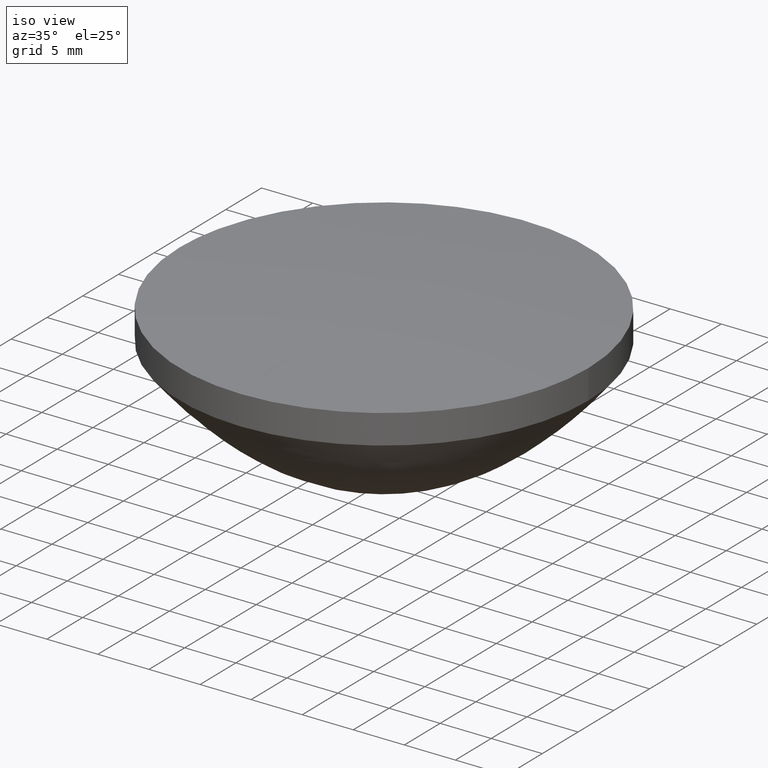
[diagram: clean part render]
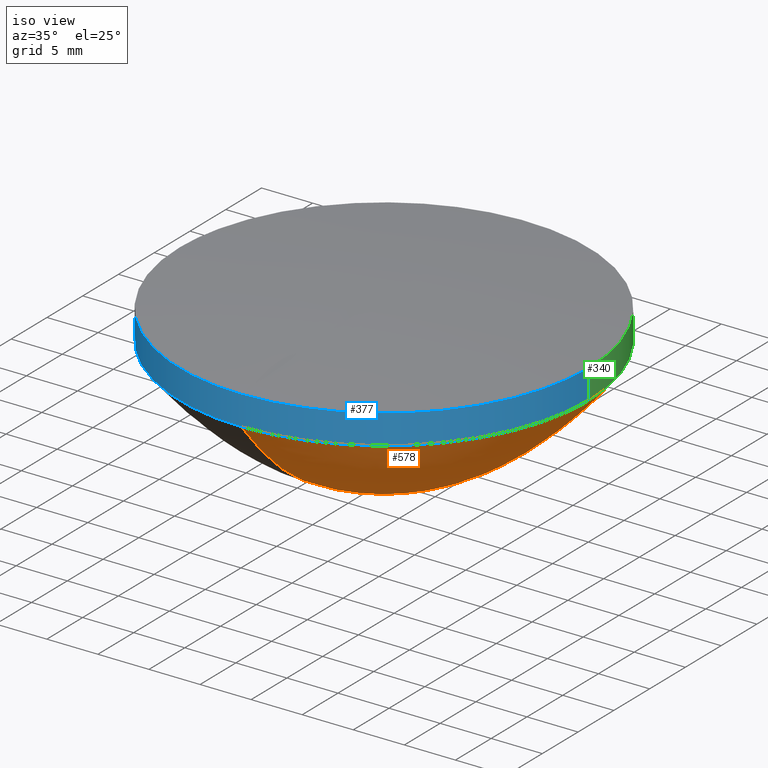
[diagram: same view with three faces highlighted in distinct colors, each labeled with its STEP entity id]
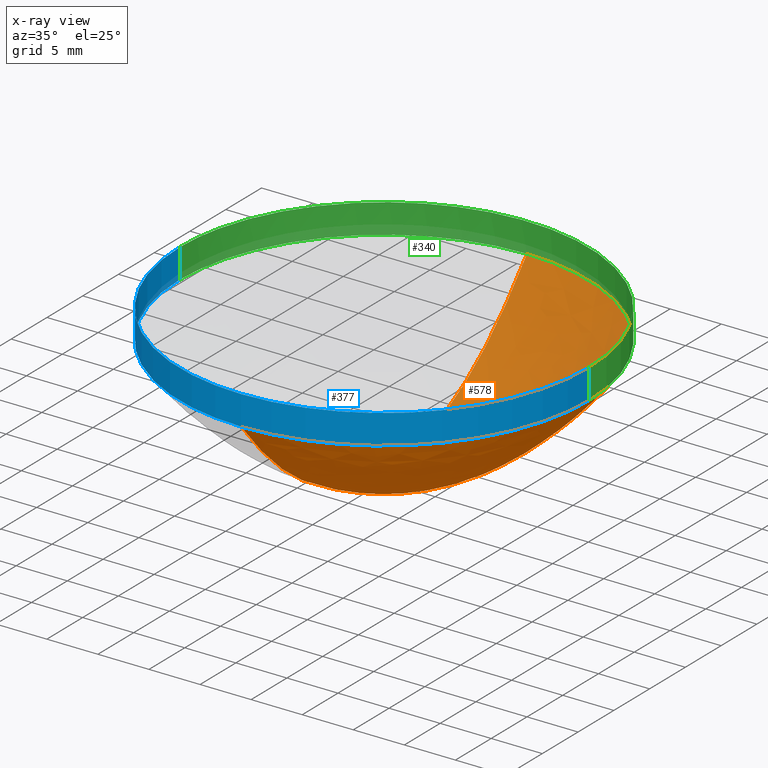
[diagram: x-ray of the same camera — body ghosted, the three highlighted faces saturated]
A machine part, iso view with three faces highlighted in distinct colors.
The next image is the same camera in x-ray (body ghosted, the three faces saturated) — at least one of them is partly hidden behind the body in this view.
Their STEP definitions:

[orange] entity #578 — the highlighted face is a freeform B-spline surface patch.
#5 = CARTESIAN_POINT ( 'NONE',  ( 0.000000000000000000, 9.659041674304420511, 2.534428717358429672 ) ) ;
#7 = CARTESIAN_POINT ( 'NONE',  ( -19.99999999999999645, 19.99999999999999645, 11.62345240056929896 ) ) ;
#9 = CARTESIAN_POINT ( 'NONE',  ( 6.601634143209210492, 6.601634143209196282, 1.166639816840760346 ) ) ;
#12 = CARTESIAN_POINT ( 'NONE',  ( 7.852413137531179643, -1.914616365393309996E-14, 1.659948762402909894 ) ) ;
#15 = CARTESIAN_POINT ( 'NONE',  ( -4.099995018653511458, -4.099995018653468826, 0.4446225274190661048 ) ) ;
#16 = CARTESIAN_POINT ( 'NONE',  ( -2.816779455752589642E-14, -6.601634143209209604, 1.166639816840759902 ) ) ;
#18 = CARTESIAN_POINT ( 'NONE',  ( 5.350825961692422084, 5.350825961692402544, 0.7621936276929105469 ) ) ;
#19 = CARTESIAN_POINT ( 'NONE',  ( 1.577721810442019932E-30, 0.8341952852228489146, 0.01232090582175070052 ) ) ;
#20 = CARTESIAN_POINT ( 'NONE',  ( -14.62628593450470049, -14.62628593450458681, 5.970071916331058048 ) ) ;
#22 = CARTESIAN_POINT ( 'NONE',  ( 1.577721810442019932E-30, 1.738553428737729778, 0.07245383292584370305 ) ) ;
#23 = CARTESIAN_POINT ( 'NONE',  ( -13.49554542342190011, 8.915424147817971358E-15, 5.052175101878280117 ) ) ;
#24 = CARTESIAN_POINT ( 'NONE',  ( 0.000000000000000000, 9.103154552021610613, 2.244514169672520154 ) ) ;
#26 = CARTESIAN_POINT ( 'NONE',  ( 13.49554542342190011, 13.49554542342180241, 5.052175101878271235 ) ) ;
#28 = CARTESIAN_POINT ( 'NONE',  ( 0.2778925748532989903, -1.808696017246919925E-14, -8.029777013077950599E-17 ) ) ;
#29 = CARTESIAN_POINT ( 'NONE',  ( 15.85053648169400553, -15.85053648169408724, 7.093137067620694403 ) ) ;
#32 = CARTESIAN_POINT ( 'NONE',  ( 2.642407831735550161, -1.848572117808719762E-14, 0.1778472089289599711 ) ) ;
#33 = CARTESIAN_POINT ( 'NONE',  ( 0.000000000000000000, 18.24433404062660102, 9.533024363435600890 ) ) ;
#37 = CARTESIAN_POINT ( 'NONE',  ( -9.659041674304456038, -9.659041674304415181, 2.534428717358428784 ) ) ;
#40 = CARTESIAN_POINT ( 'NONE',  ( -9.103154552021605284, 9.103154552021619494, 2.244514169672522819 ) ) ;
#41 = CARTESIAN_POINT ( 'NONE',  ( -2.587550535026699699E-14, -15.85053648169409968, 7.093137067620689962 ) ) ;
#46 = CARTESIAN_POINT ( 'NONE',  ( 10.35384685393950477, 10.35384685393950477, 2.923093322599557009 ) ) ;
#50 = CARTESIAN_POINT ( 'NONE',  ( -7.852413137531215170, -7.852413137531187637, 1.659948762402918776 ) ) ;
#55 = CARTESIAN_POINT ( 'NONE',  ( -2.803588504408989570E-14, -7.852413137531199183, 1.659948762402920108 ) ) ;
#57 = CARTESIAN_POINT ( 'NONE',  ( 1.224646799147349904E-15, 20.00000000000000000, 11.62345240056929896 ) ) ;
#59 = CARTESIAN_POINT ( 'NONE',  ( -2.827417863596979888E-14, -3.405157014967159945, 0.3051841653787840114 ) ) ;
#62 = B_SPLINE_CURVE_WITH_KNOTS ( 'NONE', 3,
 ( #382, #443, #606, #618, #41, #271, #671, #716, #487, #254, #105, #374, #623, #210, #322, #331, #257, #560, #610, #198, #432, #95, #501, #262, #490, #731, #206 ),
 .UNSPECIFIED., .F., .F.,
 ( 4, 1, 1, 1, 1, 1, 1, 1, 1, 1, 1, 1, 1, 1, 1, 1, 1, 1, 1, 1, 1, 1, 1, 1, 4 ),
 ( 0.000000000000000000, 0.1331924723789049969, 0.2087526336087719980, 0.2453160674682340059, 0.3161049778894040041, 0.4168348326363019996, 0.4276516619708919942, 0.4911184364520199686, 0.5117563586973169487, 0.5523118409319459632, 0.5722518825298780198, 0.6115012980729079839, 0.6308328396796499815, 0.6689534171148749930, 0.6877640771325249647, 0.7249287762474140306, 0.7433038251191860235, 0.7796807415030869715, 0.7977030364038720789, 0.8334556356452639259, 0.8512058759747900272, 0.8864937057606280257, 0.9302999929434540016, 0.9651835744165919717, 1.000000000000000000 ),
 .UNSPECIFIED. ) ;
#63 = CARTESIAN_POINT ( 'NONE',  ( -4.655990192516559212, -4.655990192516529902, 0.5752098556579614552 ) ) ;
#66 = CARTESIAN_POINT ( 'NONE',  ( -5.350825961692451394, -5.350825961692408761, 0.7621936276929147658 ) ) ;
#69 = FACE_OUTER_BOUND ( 'NONE', #667, .T. ) ;
#70 = CARTESIAN_POINT ( 'NONE',  ( -6.601634143209210492, 6.601634143209225591, 1.166639816840770338 ) ) ;
#72 = CARTESIAN_POINT ( 'NONE',  ( 1.577721810442019932E-30, 4.099995018653480372, 0.4446225274190659937 ) ) ;
#73 = CARTESIAN_POINT ( 'NONE',  ( -2.812857380618150178E-14, -0.8341952852228570192, 0.01232090582175100063 ) ) ;
#74 = CARTESIAN_POINT ( 'NONE',  ( -16.89259275161060003, 7.966077695997039606E-15, 8.115823315752120237 ) ) ;
#75 = VERTEX_POINT ( 'NONE', #392 ) ;
#76 = CARTESIAN_POINT ( 'NONE',  ( 0.000000000000000000, 0.000000000000000000, 0.000000000000000000 ) ) ;
#77 = CARTESIAN_POINT ( 'NONE',  ( 13.49554542342180241, -13.49554542342190011, 5.052175101878271235 ) ) ;
#79 = CARTESIAN_POINT ( 'NONE',  ( 0.000000000000000000, 10.35384685393950122, 2.923093322599569888 ) ) ;
#80 = CARTESIAN_POINT ( 'NONE',  ( 19.32896964386460681, -19.32896964386460681, 10.79889728285849593 ) ) ;
#83 = CARTESIAN_POINT ( 'NONE',  ( -1.738553428737740214, 1.738553428737748652, 0.07245383292584417489 ) ) ;
#84 = CARTESIAN_POINT ( 'NONE',  ( -2.637460299360479626E-14, -14.62628593450459924, 5.970071916331050943 ) ) ;
#87 =( BOUNDED_CURVE ( )  B_SPLINE_CURVE ( 2, ( #235, #588, #57 ),
 .UNSPECIFIED., .F., .F. ) 
 B_SPLINE_CURVE_WITH_KNOTS ( ( 3, 3 ),
 ( 0.000000000000000000, 1.570796326794899667 ),
 .UNSPECIFIED. ) 
 CURVE ( )  GEOMETRIC_REPRESENTATION_ITEM ( )  RATIONAL_B_SPLINE_CURVE ( ( 1.000000000000000000, 0.7071067811865480168, 1.000000000000000000 ) ) 
 REPRESENTATION_ITEM ( '' )  );
#89 = CARTESIAN_POINT ( 'NONE',  ( 0.000000000000000000, 12.37189568427879927, 4.222043726575119393 ) ) ;
#90 = CARTESIAN_POINT ( 'NONE',  ( 18.24433404062659037, -18.24433404062659037, 9.533024363435588455 ) ) ;
#94 = CARTESIAN_POINT ( 'NONE',  ( 0.000000000000000000, 10.35384685393950122, 2.923093322599569888 ) ) ;
#95 = CARTESIAN_POINT ( 'NONE',  ( -2.827417863596979888E-14, -3.405157014967159945, 0.3051841653787840114 ) ) ;
#97 = CARTESIAN_POINT ( 'NONE',  ( 1.577721810442019932E-30, 1.738553428737729778, 0.07245383292584370305 ) ) ;
#99 = CARTESIAN_POINT ( 'NONE',  ( 10.90969154080810100, -1.938839885884610265E-14, 3.255762493774879918 ) ) ;
#102 = CARTESIAN_POINT ( 'NONE',  ( -1.577721810442019932E-30, 4.655990192516529902, 0.5752098556579590127 ) ) ;
#104 = CARTESIAN_POINT ( 'NONE',  ( 8.408335420827187434, -8.408335420827242501, 1.908429821890168077 ) ) ;
#105 = CARTESIAN_POINT ( 'NONE',  ( -2.761224462193339863E-14, -10.35384685393950122, 2.923093322599559674 ) ) ;
#109 = CARTESIAN_POINT ( 'NONE',  ( -7.852413137531209841, 9.851364651602808330E-15, 1.659948762402920108 ) ) ;
#111 = CARTESIAN_POINT ( 'NONE',  ( 1.577721810442019932E-30, 19.32896964386459970, 10.79889728285850126 ) ) ;
#114 = CARTESIAN_POINT ( 'NONE',  ( 1.577721810442019932E-30, 8.408335420827219409, 1.908429821890170075 ) ) ;
#118 = CARTESIAN_POINT ( 'NONE',  ( 7.852413137531187637, 7.852413137531173426, 1.659948762402910782 ) ) ;
#120 = CARTESIAN_POINT ( 'NONE',  ( 20.00000000000000000, -1.938359619588800056E-14, 11.62345240056929896 ) ) ;
#122 = CARTESIAN_POINT ( 'NONE',  ( 6.601634143209182959, -6.601634143209225591, 1.166639816840760346 ) ) ;
#124 = CARTESIAN_POINT ( 'NONE',  ( 1.577721810442019932E-30, 5.906801585690169887, 0.9311873066207579930 ) ) ;
#128 = CARTESIAN_POINT ( 'NONE',  ( -7.157585622776490020, 9.916512985726769014E-15, 1.374870183044289984 ) ) ;
#129 = CARTESIAN_POINT ( 'NONE',  ( 1.577721810442019932E-30, 5.906801585690169887, 0.9311873066207579930 ) ) ;
#133 = CARTESIAN_POINT ( 'NONE',  ( 1.577721810442019932E-30, 0.8341952852228489146, 0.01232090582175070052 ) ) ;
#134 = CARTESIAN_POINT ( 'NONE',  ( 19.32896964386459970, -1.942535202289679785E-14, 10.79889728285850126 ) ) ;
#136 = CARTESIAN_POINT ( 'NONE',  ( 1.224646799147349904E-15, 20.00000000000000000, 11.62345240056929896 ) ) ;
#137 = CARTESIAN_POINT ( 'NONE',  ( -12.37189568427880282, -12.37189568427880282, 4.222043726575118505 ) ) ;
#138 = VERTEX_POINT ( 'NONE', #719 ) ;
#140 = CARTESIAN_POINT ( 'NONE',  ( -0.8341952852228814441, -0.8341952852228431414, 0.01232090582175119492 ) ) ;
#141 = CARTESIAN_POINT ( 'NONE',  ( -15.85053648169408724, 15.85053648169408724, 7.093137067620694403 ) ) ;
#145 = CARTESIAN_POINT ( 'NONE',  ( 1.577721810442019932E-30, 19.32896964386459970, 10.79889728285850126 ) ) ;
#146 = CARTESIAN_POINT ( 'NONE',  ( 16.89259275161060003, -1.951477309285249975E-14, 8.115823315752111355 ) ) ;
#149 = CARTESIAN_POINT ( 'NONE',  ( 0.000000000000000000, 2.642407831735559931, 0.1778472089289609981 ) ) ;
#150 = CARTESIAN_POINT ( 'NONE',  ( -2.761224462193339863E-14, -10.35384685393950122, 2.923093322599559674 ) ) ;
#154 = CARTESIAN_POINT ( 'NONE',  ( 9.103154552021591073, -9.103154552021633705, 2.244514169672522819 ) ) ;
#157 = B_SPLINE_CURVE_WITH_KNOTS ( 'NONE', 3,
 ( #136, #145, #367, #434, #665, #489, #376, #89, #320, #601, #79, #312, #24, #251, #395, #509, #158, #389, #492, #102, #165, #616, #149, #97, #495, #724, #201 ),
 .UNSPECIFIED., .F., .F.,
 ( 4, 1, 1, 1, 1, 1, 1, 1, 1, 1, 1, 1, 1, 1, 1, 1, 1, 1, 1, 1, 1, 1, 1, 1, 4 ),
 ( 0.000000000000000000, 0.1331924723789049969, 0.2087526336087719980, 0.2453160674682340059, 0.3161049778894040041, 0.4168348326363019996, 0.4276516619708919942, 0.4911184364520199686, 0.5117563586973169487, 0.5523118409319459632, 0.5722518825298780198, 0.6115012980729079839, 0.6308328396796499815, 0.6689534171148749930, 0.6877640771325249647, 0.7249287762474140306, 0.7433038251191860235, 0.7796807415030869715, 0.7977030364038720789, 0.8334556356452639259, 0.8512058759747900272, 0.8864937057606280257, 0.9302999929434540016, 0.9651835744165919717, 1.000000000000000000 ),
 .UNSPECIFIED. ) ;
#158 = CARTESIAN_POINT ( 'NONE',  ( 1.577721810442019932E-30, 6.601634143209209604, 1.166639816840759902 ) ) ;
#160 = CARTESIAN_POINT ( 'NONE',  ( 1.577721810442019932E-30, 8.408335420827219409, 1.908429821890170075 ) ) ;
#165 = CARTESIAN_POINT ( 'NONE',  ( 1.577721810442019932E-30, 4.099995018653480372, 0.4446225274190659937 ) ) ;
#167 = CARTESIAN_POINT ( 'NONE',  ( 9.659041674304384983, -9.659041674304441827, 2.534428717358421679 ) ) ;
#169 = CARTESIAN_POINT ( 'NONE',  ( 0.000000000000000000, 20.00000000000000000, 11.62345240056929896 ) ) ;
#172 = CARTESIAN_POINT ( 'NONE',  ( -2.775176679116149740E-14, -9.659041674304420511, 2.534428717358429672 ) ) ;
#176 = CARTESIAN_POINT ( 'NONE',  ( -2.824834625514989765E-14, -5.350825961692430077, 0.7621936276929139886 ) ) ;
#179 = CARTESIAN_POINT ( 'NONE',  ( -1.577721810442019932E-30, 5.350825961692419419, 0.7621936276929119902 ) ) ;
#182 = CARTESIAN_POINT ( 'NONE',  ( -1.577721810442019932E-30, 4.655990192516529902, 0.5752098556579590127 ) ) ;
#185 = CARTESIAN_POINT ( 'NONE',  ( 7.157585622776450940, -7.157585622776506895, 1.374870183044279992 ) ) ;
#186 = CARTESIAN_POINT ( 'NONE',  ( 5.350825961692402544, -5.350825961692437183, 0.7621936276929117682 ) ) ;
#189 = CARTESIAN_POINT ( 'NONE',  ( 2.642407831735542167, -2.642407831735591461, 0.1778472089289608593 ) ) ;
#190 = ORIENTED_EDGE ( 'NONE', *, *, #651, .F. ) ;
#191 = CARTESIAN_POINT ( 'NONE',  ( -2.642407831735599011, -2.642407831735563928, 0.1778472089289619973 ) ) ;
#192 = CARTESIAN_POINT ( 'NONE',  ( -13.49554542342190011, 13.49554542342190011, 5.052175101878279229 ) ) ;
#193 = CARTESIAN_POINT ( 'NONE',  ( 0.000000000000000000, 0.000000000000000000, 0.000000000000000000 ) ) ;
#194 = CARTESIAN_POINT ( 'NONE',  ( 0.000000000000000000, 12.37189568427879927, 4.222043726575119393 ) ) ;
#197 = CARTESIAN_POINT ( 'NONE',  ( 0.000000000000000000, 0.000000000000000000, 0.000000000000000000 ) ) ;
#198 = CARTESIAN_POINT ( 'NONE',  ( -2.827131229325329812E-14, -4.655990192516539672, 0.5752098556579600119 ) ) ;
#199 = CARTESIAN_POINT ( 'NONE',  ( 0.000000000000000000, 0.000000000000000000, 0.000000000000000000 ) ) ;
#201 = CARTESIAN_POINT ( 'NONE',  ( 0.000000000000000000, 0.000000000000000000, 0.000000000000000000 ) ) ;
#202 = CARTESIAN_POINT ( 'NONE',  ( 16.89259275161062135, 16.89259275161062135, 8.115823315752107803 ) ) ;
#205 = CARTESIAN_POINT ( 'NONE',  ( -9.659041674304429392, 9.631636102693410516E-15, 2.534428717358429672 ) ) ;
#206 = CARTESIAN_POINT ( 'NONE',  ( 0.000000000000000000, 0.000000000000000000, 0.000000000000000000 ) ) ;
#209 = CARTESIAN_POINT ( 'NONE',  ( -11.74867147864680028, 9.285022156214069516E-15, 3.790659671627030214 ) ) ;
#210 = CARTESIAN_POINT ( 'NONE',  ( -2.796036741346199188E-14, -8.408335420827230067, 1.908429821890170075 ) ) ;
#215 = CARTESIAN_POINT ( 'NONE',  ( 10.90969154080810277, 10.90969154080810277, 3.255762493774888355 ) ) ;
#218 = CARTESIAN_POINT ( 'NONE',  ( -2.376557567109769907E-14, -20.00000000000000000, 11.62345240056929896 ) ) ;
#222 = CARTESIAN_POINT ( 'NONE',  ( 12.37189568427879927, -1.946361498308769846E-14, 4.222043726575109623 ) ) ;
#227 = CARTESIAN_POINT ( 'NONE',  ( -8.408335420827256712, -8.408335420827214080, 1.908429821890168077 ) ) ;
#230 = CARTESIAN_POINT ( 'NONE',  ( -19.99999999999999645, -19.99999999999999645, 11.62345240056929896 ) ) ;
#233 = CARTESIAN_POINT ( 'NONE',  ( -6.601634143209220262, 9.961134044290139837E-15, 1.166639816840769894 ) ) ;
#235 = CARTESIAN_POINT ( 'NONE',  ( 20.00000000000000000, 0.000000000000000000, 11.62345240056929896 ) ) ;
#237 = CARTESIAN_POINT ( 'NONE',  ( 4.655990192516537896, 4.655990192516523685, 0.5752098556579580135 ) ) ;
#240 = CARTESIAN_POINT ( 'NONE',  ( 4.099995018653453727, -4.099995018653503465, 0.4446225274190639398 ) ) ;
#241 = CARTESIAN_POINT ( 'NONE',  ( 1.577721810442019932E-30, 6.601634143209209604, 1.166639816840759902 ) ) ;
#242 = VERTEX_POINT ( 'NONE', #726 ) ;
#243 = CARTESIAN_POINT ( 'NONE',  ( 4.099995018653470602, -1.870008459813129808E-14, 0.4446225274190639953 ) ) ;
#245 =( BOUNDED_CURVE ( )  B_SPLINE_CURVE ( 2, ( #445, #384, #612 ),
 .UNSPECIFIED., .F., .T. ) 
 B_SPLINE_CURVE_WITH_KNOTS ( ( 3, 3 ),
 ( 4.712388980384677239, 6.283185307179590673 ),
 .UNSPECIFIED. ) 
 CURVE ( )  GEOMETRIC_REPRESENTATION_ITEM ( )  RATIONAL_B_SPLINE_CURVE ( ( 1.000000000000002442, 0.7071067811865457964, 1.000000000000000000 ) ) 
 REPRESENTATION_ITEM ( '' )  );
#246 = CARTESIAN_POINT ( 'NONE',  ( 1.577721810442019932E-30, 3.405157014967159945, 0.3051841653787820130 ) ) ;
#247 = CARTESIAN_POINT ( 'NONE',  ( 0.000000000000000000, 14.62628593450459924, 5.970071916331059825 ) ) ;
#249 = CARTESIAN_POINT ( 'NONE',  ( 0.000000000000000000, 0.000000000000000000, 0.000000000000000000 ) ) ;
#250 = CARTESIAN_POINT ( 'NONE',  ( 13.49554542342179886, -1.950388798514850016E-14, 5.052175101878270347 ) ) ;
#251 = CARTESIAN_POINT ( 'NONE',  ( 1.577721810442019932E-30, 8.408335420827219409, 1.908429821890170075 ) ) ;
#252 = CARTESIAN_POINT ( 'NONE',  ( 0.000000000000000000, 16.89259275161060003, 8.115823315752120237 ) ) ;
#253 = EDGE_CURVE ( 'NONE', #242, #75, #62, .T. ) ;
#254 = CARTESIAN_POINT ( 'NONE',  ( -2.748806474816759716E-14, -10.90969154080810100, 3.255762493774879918 ) ) ;
#256 = CARTESIAN_POINT ( 'NONE',  ( 0.000000000000000000, 0.000000000000000000, 0.000000000000000000 ) ) ;
#257 = CARTESIAN_POINT ( 'NONE',  ( -2.816779455752589642E-14, -6.601634143209209604, 1.166639816840759902 ) ) ;
#261 = CARTESIAN_POINT ( 'NONE',  ( -18.24433404062660102, 7.513471372652820048E-15, 9.533024363435600890 ) ) ;
#262 = CARTESIAN_POINT ( 'NONE',  ( -2.820457461063799348E-14, -1.738553428737739770, 0.07245383292584289814 ) ) ;
#264 = CARTESIAN_POINT ( 'NONE',  ( -11.74867147864679850, -11.74867147864669903, 3.790659671627027993 ) ) ;
#270 = CARTESIAN_POINT ( 'NONE',  ( 12.37189568427870512, -12.37189568427880282, 4.222043726575111400 ) ) ;
#271 = CARTESIAN_POINT ( 'NONE',  ( -2.637460299360479626E-14, -14.62628593450459924, 5.970071916331050943 ) ) ;
#275 = CARTESIAN_POINT ( 'NONE',  ( 8.408335420827214080, 8.408335420827201645, 1.908429821890168077 ) ) ;
#280 = CARTESIAN_POINT ( 'NONE',  ( -9.103154552021630153, 9.707118967848380341E-15, 2.244514169672520154 ) ) ;
#286 = CARTESIAN_POINT ( 'NONE',  ( 3.155443620884050024E-30, 7.852413137531188525, 1.659948762402920108 ) ) ;
#291 = CARTESIAN_POINT ( 'NONE',  ( 3.405157014967127971, -3.405157014967177265, 0.3051841653787830677 ) ) ;
#295 = CARTESIAN_POINT ( 'NONE',  ( 4.655990192516520132, -1.877608419688349577E-14, 0.5752098556579579025 ) ) ;
#300 = CARTESIAN_POINT ( 'NONE',  ( -4.655990192516537896, 4.655990192516552106, 0.5752098556579614552 ) ) ;
#303 = CARTESIAN_POINT ( 'NONE',  ( 4.099995018653482148, 4.099995018653460832, 0.4446225274190653831 ) ) ;
#304 = CARTESIAN_POINT ( 'NONE',  ( 7.852413137531158327, -7.852413137531215170, 1.659948762402910782 ) ) ;
#306 = CARTESIAN_POINT ( 'NONE',  ( 2.642407831735570145, 2.642407831735549717, 0.1778472089289599989 ) ) ;
#309 = CARTESIAN_POINT ( 'NONE',  ( 0.000000000000000000, 15.85053648169409968, 7.093137067620689962 ) ) ;
#310 = CARTESIAN_POINT ( 'NONE',  ( -2.642407831735570145, 2.642407831735577695, 0.1778472089289619973 ) ) ;
#311 = CARTESIAN_POINT ( 'NONE',  ( 15.85053648169409968, -1.952802548256929980E-14, 7.093137067620689962 ) ) ;
#312 = CARTESIAN_POINT ( 'NONE',  ( 0.000000000000000000, 9.659041674304420511, 2.534428717358429672 ) ) ;
#313 = CARTESIAN_POINT ( 'NONE',  ( -15.85053648169408724, -15.85053648169408724, 7.093137067620694403 ) ) ;
#316 = CARTESIAN_POINT ( 'NONE',  ( -1.738553428737768414, -1.738553428737729112, 0.07245383292584345325 ) ) ;
#317 = CARTESIAN_POINT ( 'NONE',  ( -13.49554542342190011, -13.49554542342180241, 5.052175101878279229 ) ) ;
#320 = CARTESIAN_POINT ( 'NONE',  ( 0.000000000000000000, 11.74867147864680028, 3.790659671627020000 ) ) ;
#321 = CARTESIAN_POINT ( 'NONE',  ( 19.32896964386460681, 19.32896964386460681, 10.79889728285849593 ) ) ;
#322 = CARTESIAN_POINT ( 'NONE',  ( -2.803588504408989570E-14, -7.852413137531199183, 1.659948762402920108 ) ) ;
#326 = CARTESIAN_POINT ( 'NONE',  ( 0.000000000000000000, 10.90969154080810100, 3.255762493774890132 ) ) ;
#330 = CARTESIAN_POINT ( 'NONE',  ( 9.659041674304427616, 9.659041674304399194, 2.534428717358428784 ) ) ;
#331 = CARTESIAN_POINT ( 'NONE',  ( -2.811554158391679440E-14, -7.157585622776480250, 1.374870183044279770 ) ) ;
#336 = CARTESIAN_POINT ( 'NONE',  ( 12.37189568427880282, 12.37189568427870512, 4.222043726575111400 ) ) ;
#341 = CARTESIAN_POINT ( 'NONE',  ( -10.35384685393950122, 9.527354666591729256E-15, 2.923093322599569888 ) ) ;
#346 = CARTESIAN_POINT ( 'NONE',  ( 0.000000000000000000, 9.659041674304420511, 2.534428717358429672 ) ) ;
#349 = CARTESIAN_POINT ( 'NONE',  ( -3.405157014967170159, 1.009083871542779999E-14, 0.3051841653787840114 ) ) ;
#351 = CARTESIAN_POINT ( 'NONE',  ( 19.99999999999999645, -19.99999999999999645, 11.62345240056929896 ) ) ;
#352 = CARTESIAN_POINT ( 'NONE',  ( 5.906801585690160117, -1.893461107645479681E-14, 0.9311873066207569938 ) ) ;
#356 = CARTESIAN_POINT ( 'NONE',  ( 1.577721810442019932E-30, 6.601634143209209604, 1.166639816840759902 ) ) ;
#360 = CARTESIAN_POINT ( 'NONE',  ( 1.577721810442019932E-30, 7.157585622776470480, 1.374870183044279770 ) ) ;
#361 = CARTESIAN_POINT ( 'NONE',  ( 7.157585622776470480, -1.907558003044569835E-14, 1.374870183044279770 ) ) ;
#363 = CARTESIAN_POINT ( 'NONE',  ( 0.000000000000000000, 2.642407831735559931, 0.1778472089289609981 ) ) ;
#364 = CARTESIAN_POINT ( 'NONE',  ( -2.475863765529090030E-14, -18.24433404062660102, 9.533024363435600890 ) ) ;
#365 = CARTESIAN_POINT ( 'NONE',  ( 0.8341952852228249338, -0.8341952852228715631, 0.01232090582175070226 ) ) ;
#366 = CARTESIAN_POINT ( 'NONE',  ( 18.24433404062659037, 18.24433404062659037, 9.533024363435600890 ) ) ;
#367 = CARTESIAN_POINT ( 'NONE',  ( 0.000000000000000000, 18.24433404062660102, 9.533024363435600890 ) ) ;
#368 = CARTESIAN_POINT ( 'NONE',  ( -2.587550535026699699E-14, -15.85053648169409968, 7.093137067620689962 ) ) ;
#372 = CARTESIAN_POINT ( 'NONE',  ( -0.8341952852228531334, 0.8341952852228631254, 0.01232090582175089828 ) ) ;
#373 = CARTESIAN_POINT ( 'NONE',  ( -14.62628593450458681, 14.62628593450458681, 5.970071916331058048 ) ) ;
#374 = CARTESIAN_POINT ( 'NONE',  ( -2.775176679116149740E-14, -9.659041674304420511, 2.534428717358429672 ) ) ;
#376 = CARTESIAN_POINT ( 'NONE',  ( -1.577721810442019932E-30, 13.49554542342190011, 5.052175101878280117 ) ) ;
#381 = CARTESIAN_POINT ( 'NONE',  ( -2.710871424418359947E-14, -12.37189568427879927, 4.222043726575119393 ) ) ;
#382 = CARTESIAN_POINT ( 'NONE',  ( -2.376557567109769907E-14, -20.00000000000000000, 11.62345240056929896 ) ) ;
#384 = CARTESIAN_POINT ( 'NONE',  ( 19.99999999999999645, -20.00000000000022027, 11.62345240056929718 ) ) ;
#385 = CARTESIAN_POINT ( 'NONE',  ( 9.103154552021605284, 9.103154552021605284, 2.244514169672522819 ) ) ;
#389 = CARTESIAN_POINT ( 'NONE',  ( 1.577721810442019932E-30, 5.906801585690169887, 0.9311873066207579930 ) ) ;
#391 = CARTESIAN_POINT ( 'NONE',  ( -8.408335420827238949, 9.791536284814760103E-15, 1.908429821890170075 ) ) ;
#392 = CARTESIAN_POINT ( 'NONE',  ( 0.000000000000000000, 0.000000000000000000, 0.000000000000000000 ) ) ;
#395 = CARTESIAN_POINT ( 'NONE',  ( 3.155443620884050024E-30, 7.852413137531188525, 1.659948762402920108 ) ) ;
#397 = CARTESIAN_POINT ( 'NONE',  ( 0.000000000000000000, 9.103154552021610613, 2.244514169672520154 ) ) ;
#400 = CARTESIAN_POINT ( 'NONE',  ( -19.32896964386460681, 19.32896964386460681, 10.79889728285849593 ) ) ;
#403 = CARTESIAN_POINT ( 'NONE',  ( 11.74867147864669903, -11.74867147864679850, 3.790659671627021332 ) ) ;
#407 = CARTESIAN_POINT ( 'NONE',  ( -2.827868960711719743E-14, -4.099995018653480372, 0.4446225274190649945 ) ) ;
#411 = CARTESIAN_POINT ( 'NONE',  ( 5.906801585690172551, 5.906801585690151235, 0.9311873066207574379 ) ) ;
#414 = CARTESIAN_POINT ( 'NONE',  ( -4.099995018653491030, 1.008070958659719933E-14, 0.4446225274190669929 ) ) ;
#418 = CARTESIAN_POINT ( 'NONE',  ( -2.811554158391679440E-14, -7.157585622776480250, 1.374870183044279770 ) ) ;
#420 = CARTESIAN_POINT ( 'NONE',  ( -3.405157014967163498, 3.405157014967170603, 0.3051841653787830677 ) ) ;
#422 = CARTESIAN_POINT ( 'NONE',  ( -2.825435747977460106E-14, -2.642407831735570145, 0.1778472089289609981 ) ) ;
#424 = CARTESIAN_POINT ( 'NONE',  ( -1.738553428737749762, 1.007670730865139899E-14, 0.07245383292584381407 ) ) ;
#425 = CARTESIAN_POINT ( 'NONE',  ( 16.89259275161062135, -16.89259275161062135, 8.115823315752107803 ) ) ;
#426 = CARTESIAN_POINT ( 'NONE',  ( 0.000000000000000000, 0.2778925748533090379, 0.000000000000000000 ) ) ;
#428 = CARTESIAN_POINT ( 'NONE',  ( 14.62628593450458681, -14.62628593450470049, 5.970071916331050943 ) ) ;
#429 = ORIENTED_EDGE ( 'NONE', *, *, #625, .F. ) ;
#431 = CARTESIAN_POINT ( 'NONE',  ( -16.89259275161062135, 16.89259275161062135, 8.115823315752120237 ) ) ;
#432 = CARTESIAN_POINT ( 'NONE',  ( -2.827868960711719743E-14, -4.099995018653480372, 0.4446225274190649945 ) ) ;
#434 = CARTESIAN_POINT ( 'NONE',  ( 0.000000000000000000, 16.89259275161060003, 8.115823315752120237 ) ) ;
#435 = CARTESIAN_POINT ( 'NONE',  ( 0.000000000000000000, 18.24433404062660102, 9.533024363435600890 ) ) ;
#442 = CARTESIAN_POINT ( 'NONE',  ( -10.90969154080810100, 9.435717771835079619E-15, 3.255762493774890132 ) ) ;
#443 = CARTESIAN_POINT ( 'NONE',  ( -2.415991277295050037E-14, -19.32896964386459970, 10.79889728285850126 ) ) ;
#445 = CARTESIAN_POINT ( 'NONE',  ( -2.376557567109769907E-14, -20.00000000000000000, 11.62345240056929896 ) ) ;
#447 = CARTESIAN_POINT ( 'NONE',  ( 0.000000000000000000, 9.103154552021610613, 2.244514169672520154 ) ) ;
#452 = CARTESIAN_POINT ( 'NONE',  ( 10.35384685393950477, -10.35384685393960247, 2.923093322599557009 ) ) ;
#456 = CARTESIAN_POINT ( 'NONE',  ( 0.000000000000000000, 11.74867147864680028, 3.790659671627020000 ) ) ;
#463 = CARTESIAN_POINT ( 'NONE',  ( -8.408335420827214080, 8.408335420827228290, 1.908429821890168077 ) ) ;
#467 = CARTESIAN_POINT ( 'NONE',  ( -1.577721810442019932E-30, 5.350825961692419419, 0.7621936276929119902 ) ) ;
#469 = CARTESIAN_POINT ( 'NONE',  ( 0.000000000000000000, 20.00000000000000000, 11.62345240056929896 ) ) ;
#473 = CARTESIAN_POINT ( 'NONE',  ( 5.906801585690143241, -5.906801585690193868, 0.9311873066207574379 ) ) ;
#477 = CARTESIAN_POINT ( 'NONE',  ( -7.157585622776478473, 7.157585622776493572, 1.374870183044289984 ) ) ;
#478 = CARTESIAN_POINT ( 'NONE',  ( 1.577721810442019932E-30, 4.099995018653480372, 0.4446225274190659937 ) ) ;
#480 = CARTESIAN_POINT ( 'NONE',  ( 1.577721810442019932E-30, 1.738553428737729778, 0.07245383292584370305 ) ) ;
#481 = CARTESIAN_POINT ( 'NONE',  ( -0.2778925748533129236, 0.2778925748533228601, 8.029777013077946901E-17 ) ) ;
#483 = CARTESIAN_POINT ( 'NONE',  ( -2.806756668730879633E-14, -0.2778925748533169759, 9.833640716932900425E-33 ) ) ;
#484 = CARTESIAN_POINT ( 'NONE',  ( -15.85053648169409968, 8.288610744405170739E-15, 7.093137067620699732 ) ) ;
#485 = CARTESIAN_POINT ( 'NONE',  ( 0.8341952852228389226, -1.818668548153289846E-14, 0.01232090582175059991 ) ) ;
#487 = CARTESIAN_POINT ( 'NONE',  ( -2.728169034295089841E-14, -11.74867147864680028, 3.790659671627020000 ) ) ;
#489 = CARTESIAN_POINT ( 'NONE',  ( 0.000000000000000000, 14.62628593450459924, 5.970071916331059825 ) ) ;
#490 = CARTESIAN_POINT ( 'NONE',  ( -2.812857380618150178E-14, -0.8341952852228570192, 0.01232090582175100063 ) ) ;
#492 = CARTESIAN_POINT ( 'NONE',  ( -1.577721810442019932E-30, 5.350825961692419419, 0.7621936276929119902 ) ) ;
#495 = CARTESIAN_POINT ( 'NONE',  ( 1.577721810442019932E-30, 0.8341952852228489146, 0.01232090582175070052 ) ) ;
#496 = CARTESIAN_POINT ( 'NONE',  ( 0.000000000000000000, 10.90969154080810100, 3.255762493774890132 ) ) ;
#500 = CARTESIAN_POINT ( 'NONE',  ( -2.785123335250909808E-14, -9.103154552021621271, 2.244514169672520154 ) ) ;
#501 = CARTESIAN_POINT ( 'NONE',  ( -2.825435747977460106E-14, -2.642407831735570145, 0.1778472089289609981 ) ) ;
#505 = CARTESIAN_POINT ( 'NONE',  ( -7.852413137531187637, 7.852413137531200960, 1.659948762402918776 ) ) ;
#509 = CARTESIAN_POINT ( 'NONE',  ( 1.577721810442019932E-30, 7.157585622776470480, 1.374870183044279770 ) ) ;
#511 = CARTESIAN_POINT ( 'NONE',  ( 10.90969154080810277, -10.90969154080810277, 3.255762493774881694 ) ) ;
#517 = CARTESIAN_POINT ( 'NONE',  ( -10.35384685393950477, 10.35384685393950477, 2.923093322599571664 ) ) ;
#520 = CARTESIAN_POINT ( 'NONE',  ( -1.577721810442019932E-30, 4.655990192516529902, 0.5752098556579590127 ) ) ;
#524 = CARTESIAN_POINT ( 'NONE',  ( 6.601634143209199834, -1.901512752549809610E-14, 1.166639816840759902 ) ) ;
#527 = CARTESIAN_POINT ( 'NONE',  ( 5.350825961692409649, -1.886630151301279650E-14, 0.7621936276929109910 ) ) ;
#529 = CARTESIAN_POINT ( 'NONE',  ( -20.00000000000000000, 6.831273073504388855E-15, 11.62345240056929896 ) ) ;
#531 = CARTESIAN_POINT ( 'NONE',  ( -6.601634143209238914, -6.601634143209196282, 1.166639816840770338 ) ) ;
#532 = CARTESIAN_POINT ( 'NONE',  ( -4.099995018653482148, 4.099995018653490142, 0.4446225274190667709 ) ) ;
#534 = CARTESIAN_POINT ( 'NONE',  ( 0.8341952852228544657, 0.8341952852228347037, 0.01232090582175040562 ) ) ;
#536 = CARTESIAN_POINT ( 'NONE',  ( 0.000000000000000000, 15.85053648169409968, 7.093137067620689962 ) ) ;
#537 = CARTESIAN_POINT ( 'NONE',  ( -2.820457461063799348E-14, -1.738553428737739770, 0.07245383292584289814 ) ) ;
#538 = CARTESIAN_POINT ( 'NONE',  ( 14.62628593450458681, 14.62628593450458681, 5.970071916331050943 ) ) ;
#539 = CARTESIAN_POINT ( 'NONE',  ( 0.2778925748532846685, -0.2778925748533313533, -8.029777013077946901E-17 ) ) ;
#540 = EDGE_CURVE ( 'NONE', #654, #138, #87, .T. ) ;
#541 = CARTESIAN_POINT ( 'NONE',  ( 14.62628593450459924, -1.952789862971189962E-14, 5.970071916331050943 ) ) ;
#543 = CARTESIAN_POINT ( 'NONE',  ( -0.2778925748533412898, -0.2778925748533030982, 8.029777013077946901E-17 ) ) ;
#545 = CARTESIAN_POINT ( 'NONE',  ( -1.577721810442019932E-30, 13.49554542342190011, 5.052175101878280117 ) ) ;
#548 = CARTESIAN_POINT ( 'NONE',  ( 0.000000000000000000, 2.642407831735559931, 0.1778472089289609981 ) ) ;
#549 = CARTESIAN_POINT ( 'NONE',  ( 1.577721810442019932E-30, 19.32896964386459970, 10.79889728285850126 ) ) ;
#551 =( BOUNDED_SURFACE ( )  B_SPLINE_SURFACE ( 3, 2, ( 
 ( #469, #7, #529, #230, #218, #351, #120, #687, #169 ),
 ( #111, #400, #630, #573, #594, #80, #134, #321, #549 ),
 ( #33, #721, #261, #718, #364, #90, #715, #366, #435 ),
 ( #252, #431, #74, #662, #666, #425, #146, #202, #670 ),
 ( #536, #141, #484, #313, #368, #29, #311, #710, #309 ),
 ( #656, #373, #605, #20, #84, #428, #541, #538, #247 ),
 ( #545, #192, #23, #317, #598, #77, #250, #26, #713 ),
 ( #194, #602, #659, #137, #381, #270, #222, #336, #613 ),
 ( #628, #617, #209, #264, #690, #403, #622, #735, #456 ),
 ( #326, #559, #442, #684, #565, #511, #99, #215, #496 ),
 ( #679, #517, #341, #740, #150, #452, #571, #46, #94 ),
 ( #5, #554, #205, #37, #172, #167, #725, #330, #346 ),
 ( #397, #40, #280, #674, #500, #154, #730, #385, #447 ),
 ( #160, #463, #391, #227, #576, #104, #633, #275, #114 ),
 ( #286, #505, #109, #50, #55, #304, #12, #118, #698 ),
 ( #360, #477, #128, #652, #418, #185, #361, #644, #590 ),
 ( #356, #70, #233, #531, #16, #122, #524, #9, #241 ),
 ( #124, #591, #704, #701, #641, #473, #352, #411, #129 ),
 ( #179, #648, #586, #66, #176, #186, #527, #18, #467 ),
 ( #520, #300, #583, #63, #694, #637, #295, #237, #182 ),
 ( #72, #532, #414, #15, #407, #240, #243, #303, #478 ),
 ( #706, #420, #349, #580, #59, #291, #655, #604, #246 ),
 ( #363, #310, #709, #191, #422, #189, #32, #306, #548 ),
 ( #22, #83, #424, #316, #537, #608, #593, #714, #480 ),
 ( #133, #372, #661, #140, #73, #365, #485, #534, #19 ),
 ( #426, #481, #717, #543, #483, #539, #28, #707, #597 ),
 ( #658, #653, #712, #197, #76, #249, #193, #256, #199 ) ),
 .UNSPECIFIED., .F., .T., .T. ) 
 B_SPLINE_SURFACE_WITH_KNOTS ( ( 4, 1, 1, 1, 1, 1, 1, 1, 1, 1, 1, 1, 1, 1, 1, 1, 1, 1, 1, 1, 1, 1, 1, 1, 4 ),
 ( 3, 2, 2, 2, 3 ),
 ( 0.000000000000000000, 0.1331924723789049969, 0.2087526336087719980, 0.2453160674682340059, 0.3161049778894040041, 0.4168348326363019996, 0.4276516619708919942, 0.4911184364520199686, 0.5117563586973169487, 0.5523118409319459632, 0.5722518825298780198, 0.6115012980729079839, 0.6308328396796499815, 0.6689534171148749930, 0.6877640771325249647, 0.7249287762474140306, 0.7433038251191860235, 0.7796807415030869715, 0.7977030364038720789, 0.8334556356452639259, 0.8512058759747900272, 0.8864937057606280257, 0.9302999929434540016, 0.9651835744165919717, 1.000000000000000000 ),
 ( 0.000000000000000000, 90.00000000000000000, 180.0000000000000000, 270.0000000000000000, 360.0000000000000000 ),
 .UNSPECIFIED. ) 
 GEOMETRIC_REPRESENTATION_ITEM ( )  RATIONAL_B_SPLINE_SURFACE ( (
 ( 1.000000000000000000, 0.7071067811865480168, 1.000000000000000000, 0.7071067811865480168, 1.000000000000000000, 0.7071067811865480168, 1.000000000000000000, 0.7071067811865480168, 1.000000000000000000),
 ( 1.000000000000000000, 0.7071067811865480168, 1.000000000000000000, 0.7071067811865480168, 1.000000000000000000, 0.7071067811865480168, 1.000000000000000000, 0.7071067811865480168, 1.000000000000000000),
 ( 1.000000000000000000, 0.7071067811865480168, 1.000000000000000000, 0.7071067811865480168, 1.000000000000000000, 0.7071067811865480168, 1.000000000000000000, 0.7071067811865480168, 1.000000000000000000),
 ( 1.000000000000000000, 0.7071067811865480168, 1.000000000000000000, 0.7071067811865480168, 1.000000000000000000, 0.7071067811865480168, 1.000000000000000000, 0.7071067811865480168, 1.000000000000000000),
 ( 1.000000000000000000, 0.7071067811865480168, 1.000000000000000000, 0.7071067811865480168, 1.000000000000000000, 0.7071067811865480168, 1.000000000000000000, 0.7071067811865480168, 1.000000000000000000),
 ( 1.000000000000000000, 0.7071067811865480168, 1.000000000000000000, 0.7071067811865480168, 1.000000000000000000, 0.7071067811865480168, 1.000000000000000000, 0.7071067811865480168, 1.000000000000000000),
 ( 1.000000000000000000, 0.7071067811865480168, 1.000000000000000000, 0.7071067811865480168, 1.000000000000000000, 0.7071067811865480168, 1.000000000000000000, 0.7071067811865480168, 1.000000000000000000),
 ( 1.000000000000000000, 0.7071067811865480168, 1.000000000000000000, 0.7071067811865480168, 1.000000000000000000, 0.7071067811865480168, 1.000000000000000000, 0.7071067811865480168, 1.000000000000000000),
 ( 1.000000000000000000, 0.7071067811865480168, 1.000000000000000000, 0.7071067811865480168, 1.000000000000000000, 0.7071067811865480168, 1.000000000000000000, 0.7071067811865480168, 1.000000000000000000),
 ( 1.000000000000000000, 0.7071067811865480168, 1.000000000000000000, 0.7071067811865480168, 1.000000000000000000, 0.7071067811865480168, 1.000000000000000000, 0.7071067811865480168, 1.000000000000000000),
 ( 1.000000000000000000, 0.7071067811865480168, 1.000000000000000000, 0.7071067811865480168, 1.000000000000000000, 0.7071067811865480168, 1.000000000000000000, 0.7071067811865480168, 1.000000000000000000),
 ( 1.000000000000000000, 0.7071067811865480168, 1.000000000000000000, 0.7071067811865480168, 1.000000000000000000, 0.7071067811865480168, 1.000000000000000000, 0.7071067811865480168, 1.000000000000000000),
 ( 1.000000000000000000, 0.7071067811865480168, 1.000000000000000000, 0.7071067811865480168, 1.000000000000000000, 0.7071067811865480168, 1.000000000000000000, 0.7071067811865480168, 1.000000000000000000),
 ( 1.000000000000000000, 0.7071067811865480168, 1.000000000000000000, 0.7071067811865480168, 1.000000000000000000, 0.7071067811865480168, 1.000000000000000000, 0.7071067811865480168, 1.000000000000000000),
 ( 1.000000000000000000, 0.7071067811865480168, 1.000000000000000000, 0.7071067811865480168, 1.000000000000000000, 0.7071067811865480168, 1.000000000000000000, 0.7071067811865480168, 1.000000000000000000),
 ( 1.000000000000000000, 0.7071067811865480168, 1.000000000000000000, 0.7071067811865480168, 1.000000000000000000, 0.7071067811865480168, 1.000000000000000000, 0.7071067811865480168, 1.000000000000000000),
 ( 1.000000000000000000, 0.7071067811865480168, 1.000000000000000000, 0.7071067811865480168, 1.000000000000000000, 0.7071067811865480168, 1.000000000000000000, 0.7071067811865480168, 1.000000000000000000),
 ( 1.000000000000000000, 0.7071067811865480168, 1.000000000000000000, 0.7071067811865480168, 1.000000000000000000, 0.7071067811865480168, 1.000000000000000000, 0.7071067811865480168, 1.000000000000000000),
 ( 1.000000000000000000, 0.7071067811865480168, 1.000000000000000000, 0.7071067811865480168, 1.000000000000000000, 0.7071067811865480168, 1.000000000000000000, 0.7071067811865480168, 1.000000000000000000),
 ( 1.000000000000000000, 0.7071067811865480168, 1.000000000000000000, 0.7071067811865480168, 1.000000000000000000, 0.7071067811865480168, 1.000000000000000000, 0.7071067811865480168, 1.000000000000000000),
 ( 1.000000000000000000, 0.7071067811865480168, 1.000000000000000000, 0.7071067811865480168, 1.000000000000000000, 0.7071067811865480168, 1.000000000000000000, 0.7071067811865480168, 1.000000000000000000),
 ( 1.000000000000000000, 0.7071067811865480168, 1.000000000000000000, 0.7071067811865480168, 1.000000000000000000, 0.7071067811865480168, 1.000000000000000000, 0.7071067811865480168, 1.000000000000000000),
 ( 1.000000000000000000, 0.7071067811865480168, 1.000000000000000000, 0.7071067811865480168, 1.000000000000000000, 0.7071067811865480168, 1.000000000000000000, 0.7071067811865480168, 1.000000000000000000),
 ( 1.000000000000000000, 0.7071067811865480168, 1.000000000000000000, 0.7071067811865480168, 1.000000000000000000, 0.7071067811865480168, 1.000000000000000000, 0.7071067811865480168, 1.000000000000000000),
 ( 1.000000000000000000, 0.7071067811865480168, 1.000000000000000000, 0.7071067811865480168, 1.000000000000000000, 0.7071067811865480168, 1.000000000000000000, 0.7071067811865480168, 1.000000000000000000),
 ( 1.000000000000000000, 0.7071067811865480168, 1.000000000000000000, 0.7071067811865480168, 1.000000000000000000, 0.7071067811865480168, 1.000000000000000000, 0.7071067811865480168, 1.000000000000000000),
 ( 1.000000000000000000, 0.7071067811865480168, 1.000000000000000000, 0.7071067811865480168, 1.000000000000000000, 0.7071067811865480168, 1.000000000000000000, 0.7071067811865480168, 1.000000000000000000) ) ) 
 REPRESENTATION_ITEM ( '' )  SURFACE ( )  );
#554 = CARTESIAN_POINT ( 'NONE',  ( -9.659041674304427616, 9.659041674304427616, 2.534428717358428784 ) ) ;
#559 = CARTESIAN_POINT ( 'NONE',  ( -10.90969154080810277, 10.90969154080810277, 3.255762493774888355 ) ) ;
#560 = CARTESIAN_POINT ( 'NONE',  ( -2.821877132062950052E-14, -5.906801585690180545, 0.9311873066207588812 ) ) ;
#565 = CARTESIAN_POINT ( 'NONE',  ( -2.748806474816759716E-14, -10.90969154080810100, 3.255762493774879918 ) ) ;
#571 = CARTESIAN_POINT ( 'NONE',  ( 10.35384685393950122, -1.935287049619559991E-14, 2.923093322599559674 ) ) ;
#573 = CARTESIAN_POINT ( 'NONE',  ( -19.32896964386460681, -19.32896964386460681, 10.79889728285849593 ) ) ;
#576 = CARTESIAN_POINT ( 'NONE',  ( -2.796036741346199188E-14, -8.408335420827230067, 1.908429821890170075 ) ) ;
#578 = ADVANCED_FACE ( 'NONE', ( #69 ), #551, .T. ) ;
#580 = CARTESIAN_POINT ( 'NONE',  ( -3.405157014967191920, -3.405157014967149731, 0.3051841653787852882 ) ) ;
#583 = CARTESIAN_POINT ( 'NONE',  ( -4.655990192516550330, 1.006542244498249964E-14, 0.5752098556579610111 ) ) ;
#586 = CARTESIAN_POINT ( 'NONE',  ( -5.350825961692438959, 1.003733193081519919E-14, 0.7621936276929139886 ) ) ;
#588 = CARTESIAN_POINT ( 'NONE',  ( 19.99999999999999645, 19.99999999999999645, 11.62345240056929541 ) ) ;
#590 = CARTESIAN_POINT ( 'NONE',  ( 1.577721810442019932E-30, 7.157585622776470480, 1.374870183044279770 ) ) ;
#591 = CARTESIAN_POINT ( 'NONE',  ( -5.906801585690172551, 5.906801585690178769, 0.9311873066207604355 ) ) ;
#592 = ORIENTED_EDGE ( 'NONE', *, *, #540, .F. ) ;
#593 = CARTESIAN_POINT ( 'NONE',  ( 1.738553428737720008, -1.834077869115169989E-14, 0.07245383292584280099 ) ) ;
#594 = CARTESIAN_POINT ( 'NONE',  ( -2.415991277295050037E-14, -19.32896964386459970, 10.79889728285850126 ) ) ;
#597 = CARTESIAN_POINT ( 'NONE',  ( 0.000000000000000000, 0.2778925748533090379, 0.000000000000000000 ) ) ;
#598 = CARTESIAN_POINT ( 'NONE',  ( -2.676658448241229756E-14, -13.49554542342190011, 5.052175101878280117 ) ) ;
#601 = CARTESIAN_POINT ( 'NONE',  ( 0.000000000000000000, 10.90969154080810100, 3.255762493774890132 ) ) ;
#602 = CARTESIAN_POINT ( 'NONE',  ( -12.37189568427880282, 12.37189568427880282, 4.222043726575118505 ) ) ;
#603 = ORIENTED_EDGE ( 'NONE', *, *, #253, .T. ) ;
#604 = CARTESIAN_POINT ( 'NONE',  ( 3.405157014967163498, 3.405157014967142182, 0.3051841653787810693 ) ) ;
#605 = CARTESIAN_POINT ( 'NONE',  ( -14.62628593450459924, 8.637907789203379445E-15, 5.970071916331059825 ) ) ;
#606 = CARTESIAN_POINT ( 'NONE',  ( -2.475863765529090030E-14, -18.24433404062660102, 9.533024363435600890 ) ) ;
#608 = CARTESIAN_POINT ( 'NONE',  ( 1.738553428737711792, -1.738553428737759976, 0.07245383292584248180 ) ) ;
#610 = CARTESIAN_POINT ( 'NONE',  ( -2.824834625514989765E-14, -5.350825961692430077, 0.7621936276929139886 ) ) ;
#612 = CARTESIAN_POINT ( 'NONE',  ( 20.00000000000000000, 0.000000000000000000, 11.62345240056929896 ) ) ;
#613 = CARTESIAN_POINT ( 'NONE',  ( 0.000000000000000000, 12.37189568427879927, 4.222043726575119393 ) ) ;
#616 = CARTESIAN_POINT ( 'NONE',  ( 1.577721810442019932E-30, 3.405157014967159945, 0.3051841653787820130 ) ) ;
#617 = CARTESIAN_POINT ( 'NONE',  ( -11.74867147864679850, 11.74867147864679850, 3.790659671627027993 ) ) ;
#618 = CARTESIAN_POINT ( 'NONE',  ( -2.541210482459359900E-14, -16.89259275161060003, 8.115823315752111355 ) ) ;
#622 = CARTESIAN_POINT ( 'NONE',  ( 11.74867147864669903, -1.943546547879269836E-14, 3.790659671627020000 ) ) ;
#623 = CARTESIAN_POINT ( 'NONE',  ( -2.785123335250909808E-14, -9.103154552021621271, 2.244514169672520154 ) ) ;
#625 = EDGE_CURVE ( 'NONE', #138, #75, #157, .T. ) ;
#628 = CARTESIAN_POINT ( 'NONE',  ( 0.000000000000000000, 11.74867147864680028, 3.790659671627020000 ) ) ;
#630 = CARTESIAN_POINT ( 'NONE',  ( -19.32896964386459970, 7.101676830571179115E-15, 10.79889728285850126 ) ) ;
#633 = CARTESIAN_POINT ( 'NONE',  ( 8.408335420827208750, -1.919855523457460063E-14, 1.908429821890170075 ) ) ;
#637 = CARTESIAN_POINT ( 'NONE',  ( 4.655990192516509474, -4.655990192516552106, 0.5752098556579593458 ) ) ;
#641 = CARTESIAN_POINT ( 'NONE',  ( -2.821877132062950052E-14, -5.906801585690180545, 0.9311873066207588812 ) ) ;
#644 = CARTESIAN_POINT ( 'NONE',  ( 7.157585622776478473, 7.157585622776464263, 1.374870183044279992 ) ) ;
#648 = CARTESIAN_POINT ( 'NONE',  ( -5.350825961692422084, 5.350825961692430965, 0.7621936276929132115 ) ) ;
#651 = EDGE_CURVE ( 'NONE', #242, #654, #245, .T. ) ;
#652 = CARTESIAN_POINT ( 'NONE',  ( -7.157585622776506895, -7.157585622776464263, 1.374870183044289984 ) ) ;
#653 = CARTESIAN_POINT ( 'NONE',  ( 0.000000000000000000, 0.000000000000000000, 0.000000000000000000 ) ) ;
#654 = VERTEX_POINT ( 'NONE', #681 ) ;
#655 = CARTESIAN_POINT ( 'NONE',  ( 3.405157014967150175, -1.860035138443940068E-14, 0.3051841653787820130 ) ) ;
#656 = CARTESIAN_POINT ( 'NONE',  ( 0.000000000000000000, 14.62628593450459924, 5.970071916331059825 ) ) ;
#658 = CARTESIAN_POINT ( 'NONE',  ( 0.000000000000000000, 0.000000000000000000, 0.000000000000000000 ) ) ;
#659 = CARTESIAN_POINT ( 'NONE',  ( -12.37189568427879927, 9.160219506009639079E-15, 4.222043726575119393 ) ) ;
#661 = CARTESIAN_POINT ( 'NONE',  ( -0.8341952852228669002, 1.004404778323979887E-14, 0.01232090582175110124 ) ) ;
#662 = CARTESIAN_POINT ( 'NONE',  ( -16.89259275161062135, -16.89259275161062135, 8.115823315752120237 ) ) ;
#665 = CARTESIAN_POINT ( 'NONE',  ( 0.000000000000000000, 15.85053648169409968, 7.093137067620689962 ) ) ;
#666 = CARTESIAN_POINT ( 'NONE',  ( -2.541210482459359900E-14, -16.89259275161060003, 8.115823315752111355 ) ) ;
#667 = EDGE_LOOP ( 'NONE', ( #190, #603, #429, #592 ) ) ;
#670 = CARTESIAN_POINT ( 'NONE',  ( 0.000000000000000000, 16.89259275161060003, 8.115823315752120237 ) ) ;
#671 = CARTESIAN_POINT ( 'NONE',  ( -2.676658448241229756E-14, -13.49554542342190011, 5.052175101878280117 ) ) ;
#674 = CARTESIAN_POINT ( 'NONE',  ( -9.103154552021647916, -9.103154552021605284, 2.244514169672522819 ) ) ;
#679 = CARTESIAN_POINT ( 'NONE',  ( 0.000000000000000000, 10.35384685393950122, 2.923093322599569888 ) ) ;
#681 = CARTESIAN_POINT ( 'NONE',  ( 20.00000000000000000, 0.000000000000000000, 11.62345240056929896 ) ) ;
#684 = CARTESIAN_POINT ( 'NONE',  ( -10.90969154080810277, -10.90969154080810277, 3.255762493774888355 ) ) ;
#687 = CARTESIAN_POINT ( 'NONE',  ( 19.99999999999999645, 19.99999999999999645, 11.62345240056929896 ) ) ;
#690 = CARTESIAN_POINT ( 'NONE',  ( -2.728169034295089841E-14, -11.74867147864680028, 3.790659671627020000 ) ) ;
#694 = CARTESIAN_POINT ( 'NONE',  ( -2.827131229325329812E-14, -4.655990192516539672, 0.5752098556579600119 ) ) ;
#698 = CARTESIAN_POINT ( 'NONE',  ( 3.155443620884050024E-30, 7.852413137531188525, 1.659948762402920108 ) ) ;
#701 = CARTESIAN_POINT ( 'NONE',  ( -5.906801585690200973, -5.906801585690158340, 0.9311873066207604355 ) ) ;
#704 = CARTESIAN_POINT ( 'NONE',  ( -5.906801585690189427, 1.000753480968609830E-14, 0.9311873066207598804 ) ) ;
#706 = CARTESIAN_POINT ( 'NONE',  ( 1.577721810442019932E-30, 3.405157014967159945, 0.3051841653787820130 ) ) ;
#707 = CARTESIAN_POINT ( 'NONE',  ( 0.2778925748533129236, 0.2778925748532952711, -8.029777013077946901E-17 ) ) ;
#709 = CARTESIAN_POINT ( 'NONE',  ( -2.642407831735579915, 1.009223793100509918E-14, 0.1778472089289619973 ) ) ;
#710 = CARTESIAN_POINT ( 'NONE',  ( 15.85053648169408724, 15.85053648169408724, 7.093137067620694403 ) ) ;
#712 = CARTESIAN_POINT ( 'NONE',  ( 0.000000000000000000, 0.000000000000000000, 0.000000000000000000 ) ) ;
#713 = CARTESIAN_POINT ( 'NONE',  ( -1.577721810442019932E-30, 13.49554542342190011, 5.052175101878280117 ) ) ;
#714 = CARTESIAN_POINT ( 'NONE',  ( 1.738553428737740214, 1.738553428737720452, 0.07245383292584317569 ) ) ;
#715 = CARTESIAN_POINT ( 'NONE',  ( 18.24433404062660102, -1.947945281118089807E-14, 9.533024363435590232 ) ) ;
#716 = CARTESIAN_POINT ( 'NONE',  ( -2.710871424418359947E-14, -12.37189568427879927, 4.222043726575119393 ) ) ;
#717 = CARTESIAN_POINT ( 'NONE',  ( -0.2778925748533270235, 1.001463854006969984E-14, 8.029777013077950599E-17 ) ) ;
#718 = CARTESIAN_POINT ( 'NONE',  ( -18.24433404062659037, -18.24433404062659037, 9.533024363435600890 ) ) ;
#719 = CARTESIAN_POINT ( 'NONE',  ( 1.224646799147349904E-15, 20.00000000000000000, 11.62345240056929896 ) ) ;
#721 = CARTESIAN_POINT ( 'NONE',  ( -18.24433404062659037, 18.24433404062659037, 9.533024363435616877 ) ) ;
#724 = CARTESIAN_POINT ( 'NONE',  ( 0.000000000000000000, 0.2778925748533090379, 0.000000000000000000 ) ) ;
#725 = CARTESIAN_POINT ( 'NONE',  ( 9.659041674304409852, -1.930302213539479949E-14, 2.534428717358419458 ) ) ;
#726 = CARTESIAN_POINT ( 'NONE',  ( -2.376557567109769907E-14, -20.00000000000000000, 11.62345240056929896 ) ) ;
#730 = CARTESIAN_POINT ( 'NONE',  ( 9.103154552021599955, -1.925892929308839998E-14, 2.244514169672520154 ) ) ;
#731 = CARTESIAN_POINT ( 'NONE',  ( -2.806756668730879633E-14, -0.2778925748533169759, 9.833640716932900425E-33 ) ) ;
#735 = CARTESIAN_POINT ( 'NONE',  ( 11.74867147864679850, 11.74867147864669903, 3.790659671627021332 ) ) ;
#740 = CARTESIAN_POINT ( 'NONE',  ( -10.35384685393960247, -10.35384685393950477, 2.923093322599571664 ) ) ;

[blue] entity #377 — the highlighted cylindrical surface (partial cylindrical patch) has radius 20 mm, axis along (0, 0, 1).
#1 = DIRECTION ( 'NONE',  ( 0.000000000000000000, 0.000000000000000000, 1.000000000000000000 ) ) ;
#11 = CARTESIAN_POINT ( 'NONE',  ( -20.00000000000000000, 2.449293598294709668E-15, 14.49748742132399926 ) ) ;
#17 =( BOUNDED_CURVE ( )  B_SPLINE_CURVE ( 2, ( #11, #646, #283, #126, #358 ),
 .UNSPECIFIED., .F., .T. ) 
 B_SPLINE_CURVE_WITH_KNOTS ( ( 3, 2, 3 ),
 ( 3.141592653589790007, 4.712388980384689674, 6.283185307179590673 ),
 .UNSPECIFIED. ) 
 CURVE ( )  GEOMETRIC_REPRESENTATION_ITEM ( )  RATIONAL_B_SPLINE_CURVE ( ( 1.000000000000000000, 0.7071067811865480168, 1.000000000000000000, 0.7071067811865480168, 1.000000000000000000 ) ) 
 REPRESENTATION_ITEM ( '' )  );
#27 = ORIENTED_EDGE ( 'NONE', *, *, #188, .F. ) ;
#91 = CARTESIAN_POINT ( 'NONE',  ( -20.00000000000000000, 2.449293598294709668E-15, 11.62345240056929896 ) ) ;
#93 =( BOUNDED_CURVE ( )  B_SPLINE_CURVE ( 2, ( #523, #526, #454 ),
 .UNSPECIFIED., .F., .F. ) 
 B_SPLINE_CURVE_WITH_KNOTS ( ( 3, 3 ),
 ( 3.141592653589790007, 4.712388980384677239 ),
 .UNSPECIFIED. ) 
 CURVE ( )  GEOMETRIC_REPRESENTATION_ITEM ( )  RATIONAL_B_SPLINE_CURVE ( ( 1.000000000000000000, 0.7071067811865503483, 0.9999999999999976685 ) ) 
 REPRESENTATION_ITEM ( '' )  );
#100 = EDGE_LOOP ( 'NONE', ( #314, #595, #327, #649, #27 ) ) ;
#126 = CARTESIAN_POINT ( 'NONE',  ( 19.99999999999999645, -19.99999999999999645, 14.49748742132399570 ) ) ;
#130 = VERTEX_POINT ( 'NONE', #155 ) ;
#131 = CARTESIAN_POINT ( 'NONE',  ( 20.00000000000000000, 0.000000000000000000, 14.49748742132399926 ) ) ;
#151 = CARTESIAN_POINT ( 'NONE',  ( -20.00000000000000000, 2.449293598294709668E-15, 14.49748742132399926 ) ) ;
#155 = CARTESIAN_POINT ( 'NONE',  ( -20.00000000000000000, 2.449293598294709668E-15, 11.62345240056929896 ) ) ;
#187 = VERTEX_POINT ( 'NONE', #386 ) ;
#188 = EDGE_CURVE ( 'NONE', #130, #305, #535, .T. ) ;
#239 = CYLINDRICAL_SURFACE ( 'NONE', #244, 20.00000000000000000 ) ;
#242 = VERTEX_POINT ( 'NONE', #726 ) ;
#244 = AXIS2_PLACEMENT_3D ( 'NONE', #293, #1, #585 ) ;
#245 =( BOUNDED_CURVE ( )  B_SPLINE_CURVE ( 2, ( #445, #384, #612 ),
 .UNSPECIFIED., .F., .T. ) 
 B_SPLINE_CURVE_WITH_KNOTS ( ( 3, 3 ),
 ( 4.712388980384677239, 6.283185307179590673 ),
 .UNSPECIFIED. ) 
 CURVE ( )  GEOMETRIC_REPRESENTATION_ITEM ( )  RATIONAL_B_SPLINE_CURVE ( ( 1.000000000000002442, 0.7071067811865457964, 1.000000000000000000 ) ) 
 REPRESENTATION_ITEM ( '' )  );
#283 = CARTESIAN_POINT ( 'NONE',  ( -3.673940397442059967E-15, -20.00000000000000000, 14.49748742132399926 ) ) ;
#293 = CARTESIAN_POINT ( 'NONE',  ( 1.776356839400249676E-15, -3.552713678800499352E-15, 11.62345240056929896 ) ) ;
#305 = VERTEX_POINT ( 'NONE', #151 ) ;
#314 = ORIENTED_EDGE ( 'NONE', *, *, #417, .T. ) ;
#327 = ORIENTED_EDGE ( 'NONE', *, *, #600, .T. ) ;
#358 = CARTESIAN_POINT ( 'NONE',  ( 20.00000000000000000, 0.000000000000000000, 14.49748742132399926 ) ) ;
#377 = ADVANCED_FACE ( 'NONE', ( #458 ), #239, .T. ) ;
#384 = CARTESIAN_POINT ( 'NONE',  ( 19.99999999999999645, -20.00000000000022027, 11.62345240056929718 ) ) ;
#386 = CARTESIAN_POINT ( 'NONE',  ( 20.00000000000000000, 0.000000000000000000, 14.49748742132399926 ) ) ;
#417 = EDGE_CURVE ( 'NONE', #130, #242, #93, .T. ) ;
#430 = CARTESIAN_POINT ( 'NONE',  ( 20.00000000000000000, 0.000000000000000000, 11.62345240056929896 ) ) ;
#445 = CARTESIAN_POINT ( 'NONE',  ( -2.376557567109769907E-14, -20.00000000000000000, 11.62345240056929896 ) ) ;
#454 = CARTESIAN_POINT ( 'NONE',  ( -2.376557567109769907E-14, -20.00000000000000000, 11.62345240056929896 ) ) ;
#458 = FACE_OUTER_BOUND ( 'NONE', #100, .T. ) ;
#475 = EDGE_CURVE ( 'NONE', #305, #187, #17, .T. ) ;
#522 = B_SPLINE_CURVE_WITH_KNOTS ( 'NONE', 1,
 ( #430, #131 ),
 .UNSPECIFIED., .F., .F.,
 ( 2, 2 ),
 ( 0.000000000000000000, 1.000000000000000000 ),
 .UNSPECIFIED. ) ;
#523 = CARTESIAN_POINT ( 'NONE',  ( -20.00000000000000000, 2.449293598294709668E-15, 11.62345240056929896 ) ) ;
#526 = CARTESIAN_POINT ( 'NONE',  ( -19.99999999999999645, -19.99999999999977618, 11.62345240056929718 ) ) ;
#535 = B_SPLINE_CURVE_WITH_KNOTS ( 'NONE', 1,
 ( #91, #675 ),
 .UNSPECIFIED., .F., .F.,
 ( 2, 2 ),
 ( 0.000000000000000000, 1.000000000000000000 ),
 .UNSPECIFIED. ) ;
#585 = DIRECTION ( 'NONE',  ( -1.000000000000000000, 3.001003638547600566E-16, 0.000000000000000000 ) ) ;
#595 = ORIENTED_EDGE ( 'NONE', *, *, #651, .T. ) ;
#600 = EDGE_CURVE ( 'NONE', #654, #187, #522, .T. ) ;
#612 = CARTESIAN_POINT ( 'NONE',  ( 20.00000000000000000, 0.000000000000000000, 11.62345240056929896 ) ) ;
#646 = CARTESIAN_POINT ( 'NONE',  ( -19.99999999999999645, -19.99999999999999645, 14.49748742132399570 ) ) ;
#649 = ORIENTED_EDGE ( 'NONE', *, *, #475, .F. ) ;
#651 = EDGE_CURVE ( 'NONE', #242, #654, #245, .T. ) ;
#654 = VERTEX_POINT ( 'NONE', #681 ) ;
#675 = CARTESIAN_POINT ( 'NONE',  ( -20.00000000000000000, 2.449293598294709668E-15, 14.49748742132399926 ) ) ;
#681 = CARTESIAN_POINT ( 'NONE',  ( 20.00000000000000000, 0.000000000000000000, 11.62345240056929896 ) ) ;
#726 = CARTESIAN_POINT ( 'NONE',  ( -2.376557567109769907E-14, -20.00000000000000000, 11.62345240056929896 ) ) ;

[green] entity #340 — the highlighted cylindrical surface (partial cylindrical patch) has radius 20 mm, axis along (0, 0, 1).
#30 = CARTESIAN_POINT ( 'NONE',  ( -1.776356839400249676E-15, 1.776356839400249676E-15, 11.62345240056929896 ) ) ;
#57 = CARTESIAN_POINT ( 'NONE',  ( 1.224646799147349904E-15, 20.00000000000000000, 11.62345240056929896 ) ) ;
#81 = ORIENTED_EDGE ( 'NONE', *, *, #600, .F. ) ;
#87 =( BOUNDED_CURVE ( )  B_SPLINE_CURVE ( 2, ( #235, #588, #57 ),
 .UNSPECIFIED., .F., .F. ) 
 B_SPLINE_CURVE_WITH_KNOTS ( ( 3, 3 ),
 ( 0.000000000000000000, 1.570796326794899667 ),
 .UNSPECIFIED. ) 
 CURVE ( )  GEOMETRIC_REPRESENTATION_ITEM ( )  RATIONAL_B_SPLINE_CURVE ( ( 1.000000000000000000, 0.7071067811865480168, 1.000000000000000000 ) ) 
 REPRESENTATION_ITEM ( '' )  );
#91 = CARTESIAN_POINT ( 'NONE',  ( -20.00000000000000000, 2.449293598294709668E-15, 11.62345240056929896 ) ) ;
#116 = CARTESIAN_POINT ( 'NONE',  ( -19.99999999999999645, 19.99999999999999645, 14.49748742132399570 ) ) ;
#130 = VERTEX_POINT ( 'NONE', #155 ) ;
#131 = CARTESIAN_POINT ( 'NONE',  ( 20.00000000000000000, 0.000000000000000000, 14.49748742132399926 ) ) ;
#132 = ORIENTED_EDGE ( 'NONE', *, *, #540, .T. ) ;
#138 = VERTEX_POINT ( 'NONE', #719 ) ;
#151 = CARTESIAN_POINT ( 'NONE',  ( -20.00000000000000000, 2.449293598294709668E-15, 14.49748742132399926 ) ) ;
#155 = CARTESIAN_POINT ( 'NONE',  ( -20.00000000000000000, 2.449293598294709668E-15, 11.62345240056929896 ) ) ;
#161 = CARTESIAN_POINT ( 'NONE',  ( -19.99999999999999645, 19.99999999999999645, 11.62345240056929541 ) ) ;
#184 = CARTESIAN_POINT ( 'NONE',  ( -20.00000000000000000, 2.449293598294709668E-15, 14.49748742132399926 ) ) ;
#187 = VERTEX_POINT ( 'NONE', #386 ) ;
#188 = EDGE_CURVE ( 'NONE', #130, #305, #535, .T. ) ;
#224 = CARTESIAN_POINT ( 'NONE',  ( 1.224646799147349904E-15, 20.00000000000000000, 14.49748742132399926 ) ) ;
#235 = CARTESIAN_POINT ( 'NONE',  ( 20.00000000000000000, 0.000000000000000000, 11.62345240056929896 ) ) ;
#305 = VERTEX_POINT ( 'NONE', #151 ) ;
#323 = EDGE_CURVE ( 'NONE', #138, #130, #462, .T. ) ;
#340 = ADVANCED_FACE ( 'NONE', ( #542 ), #550, .T. ) ;
#362 = EDGE_LOOP ( 'NONE', ( #132, #711, #722, #423, #81 ) ) ;
#378 = CARTESIAN_POINT ( 'NONE',  ( -20.00000000000000000, 2.449293598294709668E-15, 11.62345240056929896 ) ) ;
#386 = CARTESIAN_POINT ( 'NONE',  ( 20.00000000000000000, 0.000000000000000000, 14.49748742132399926 ) ) ;
#416 = CARTESIAN_POINT ( 'NONE',  ( 19.99999999999999645, 19.99999999999999645, 14.49748742132399570 ) ) ;
#423 = ORIENTED_EDGE ( 'NONE', *, *, #459, .F. ) ;
#430 = CARTESIAN_POINT ( 'NONE',  ( 20.00000000000000000, 0.000000000000000000, 11.62345240056929896 ) ) ;
#438 = CARTESIAN_POINT ( 'NONE',  ( 1.224646799147349904E-15, 20.00000000000000000, 11.62345240056929896 ) ) ;
#439 = AXIS2_PLACEMENT_3D ( 'NONE', #30, #493, #614 ) ;
#459 = EDGE_CURVE ( 'NONE', #187, #305, #530, .T. ) ;
#462 =( BOUNDED_CURVE ( )  B_SPLINE_CURVE ( 2, ( #438, #161, #378 ),
 .UNSPECIFIED., .F., .T. ) 
 B_SPLINE_CURVE_WITH_KNOTS ( ( 3, 3 ),
 ( 1.570796326794899889, 3.141592653589790007 ),
 .UNSPECIFIED. ) 
 CURVE ( )  GEOMETRIC_REPRESENTATION_ITEM ( )  RATIONAL_B_SPLINE_CURVE ( ( 1.000000000000000000, 0.7071067811865480168, 1.000000000000000000 ) ) 
 REPRESENTATION_ITEM ( '' )  );
#493 = DIRECTION ( 'NONE',  ( 0.000000000000000000, 0.000000000000000000, 1.000000000000000000 ) ) ;
#522 = B_SPLINE_CURVE_WITH_KNOTS ( 'NONE', 1,
 ( #430, #131 ),
 .UNSPECIFIED., .F., .F.,
 ( 2, 2 ),
 ( 0.000000000000000000, 1.000000000000000000 ),
 .UNSPECIFIED. ) ;
#530 =( BOUNDED_CURVE ( )  B_SPLINE_CURVE ( 2, ( #635, #416, #224, #116, #184 ),
 .UNSPECIFIED., .F., .T. ) 
 B_SPLINE_CURVE_WITH_KNOTS ( ( 3, 2, 3 ),
 ( 0.000000000000000000, 1.570796326794899889, 3.141592653589790007 ),
 .UNSPECIFIED. ) 
 CURVE ( )  GEOMETRIC_REPRESENTATION_ITEM ( )  RATIONAL_B_SPLINE_CURVE ( ( 1.000000000000000000, 0.7071067811865480168, 1.000000000000000000, 0.7071067811865480168, 1.000000000000000000 ) ) 
 REPRESENTATION_ITEM ( '' )  );
#535 = B_SPLINE_CURVE_WITH_KNOTS ( 'NONE', 1,
 ( #91, #675 ),
 .UNSPECIFIED., .F., .F.,
 ( 2, 2 ),
 ( 0.000000000000000000, 1.000000000000000000 ),
 .UNSPECIFIED. ) ;
#540 = EDGE_CURVE ( 'NONE', #654, #138, #87, .T. ) ;
#542 = FACE_OUTER_BOUND ( 'NONE', #362, .T. ) ;
#550 = CYLINDRICAL_SURFACE ( 'NONE', #439, 20.00000000000000000 ) ;
#588 = CARTESIAN_POINT ( 'NONE',  ( 19.99999999999999645, 19.99999999999999645, 11.62345240056929541 ) ) ;
#600 = EDGE_CURVE ( 'NONE', #654, #187, #522, .T. ) ;
#614 = DIRECTION ( 'NONE',  ( 1.000000000000000000, -8.881784197001247886E-17, 0.000000000000000000 ) ) ;
#635 = CARTESIAN_POINT ( 'NONE',  ( 20.00000000000000000, 0.000000000000000000, 14.49748742132399926 ) ) ;
#654 = VERTEX_POINT ( 'NONE', #681 ) ;
#675 = CARTESIAN_POINT ( 'NONE',  ( -20.00000000000000000, 2.449293598294709668E-15, 14.49748742132399926 ) ) ;
#681 = CARTESIAN_POINT ( 'NONE',  ( 20.00000000000000000, 0.000000000000000000, 11.62345240056929896 ) ) ;
#711 = ORIENTED_EDGE ( 'NONE', *, *, #323, .T. ) ;
#719 = CARTESIAN_POINT ( 'NONE',  ( 1.224646799147349904E-15, 20.00000000000000000, 11.62345240056929896 ) ) ;
#722 = ORIENTED_EDGE ( 'NONE', *, *, #188, .T. ) ;